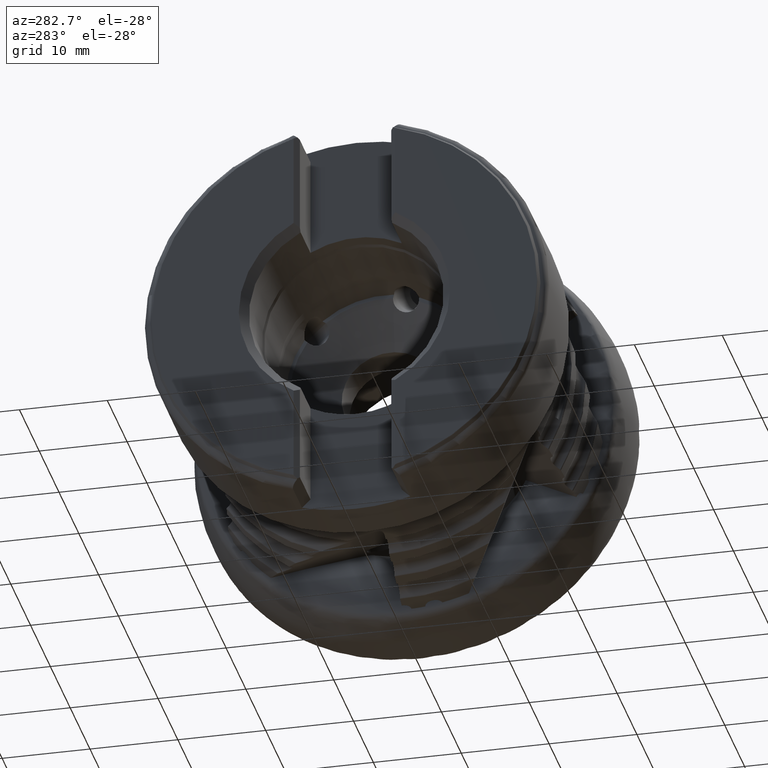
[diagram: clean part render]
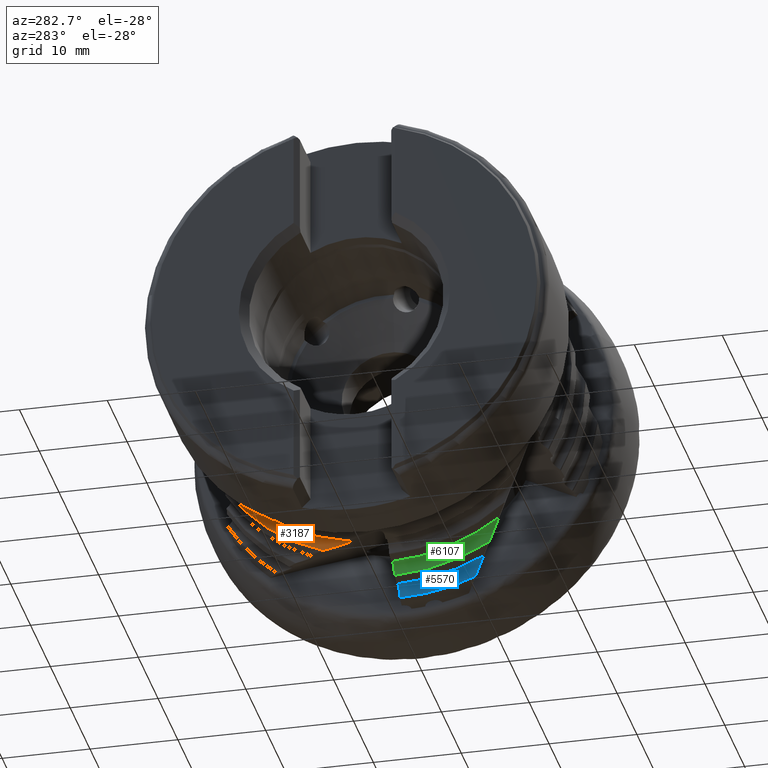
[diagram: same view with three faces highlighted in distinct colors, each labeled with its STEP entity id]
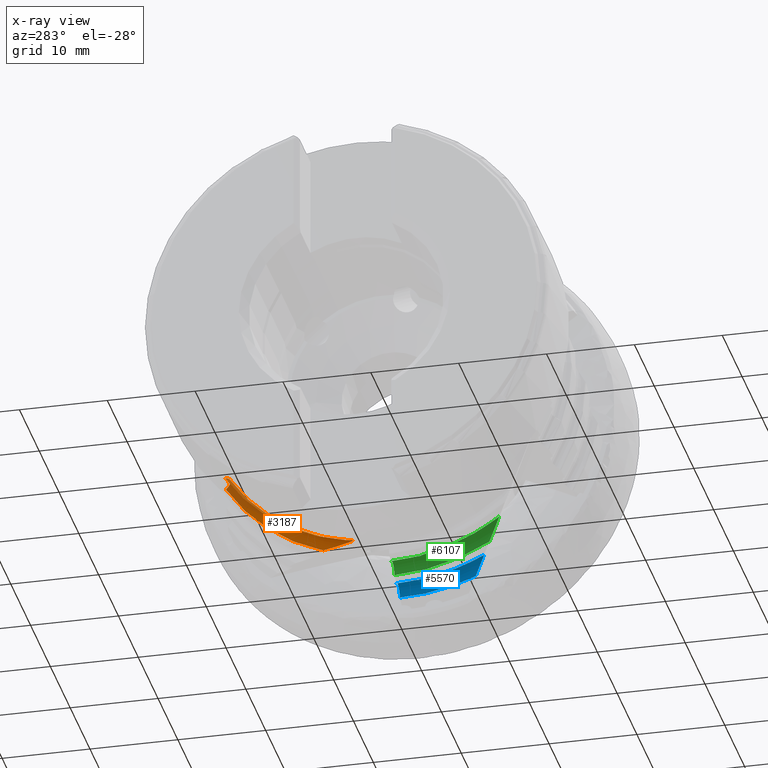
[diagram: x-ray of the same camera — body ghosted, the three highlighted faces saturated]
A machine part, auxiliary view with three faces highlighted in distinct colors.
The next image is the same camera in x-ray (body ghosted, the three faces saturated) — at least one of them is partly hidden behind the body in this view.
Their STEP definitions:

[orange] entity #3187 — the highlighted toroidal blend (fillet) surface has major radius 21.7722 mm and minor (blend) radius 1.5 mm.
#130 = VERTEX_POINT ( 'NONE', #5664 ) ;
#211 = AXIS2_PLACEMENT_3D ( 'NONE', #9910, #7178, #10834 ) ;
#339 = DIRECTION ( 'NONE',  ( 0.0000000000000000000, 0.0000000000000000000, 1.000000000000000000 ) ) ;
#620 = CIRCLE ( 'NONE', #9507, 20.73211390725824500 ) ;
#630 = EDGE_CURVE ( 'NONE', #5777, #4929, #9597, .T. ) ;
#801 = CARTESIAN_POINT ( 'NONE',  ( -21.13087859951962600, 17.60716917457905200, -10.94569050911273900 ) ) ;
#835 = CARTESIAN_POINT ( 'NONE',  ( -19.67118092968246000, 17.30003180987494100, -10.65050207042723000 ) ) ;
#874 = EDGE_LOOP ( 'NONE', ( #10173, #885, #4176, #4095 ) ) ;
#885 = ORIENTED_EDGE ( 'NONE', *, *, #7662, .T. ) ;
#920 = CARTESIAN_POINT ( 'NONE',  ( -19.55108847718164400, 4.315878190496023100, -19.89220388104703100 ) ) ;
#1657 = CARTESIAN_POINT ( 'NONE',  ( -19.12610647228360600, 5.314850136450536100, -19.88211659716479900 ) ) ;
#1675 = CARTESIAN_POINT ( 'NONE',  ( -19.87804341494742400, 3.745560951187519200, -19.93199614168690900 ) ) ;
#1772 = CARTESIAN_POINT ( 'NONE',  ( -19.33122505335194300, 17.42889960872676600, -10.69745435221362600 ) ) ;
#2307 = CARTESIAN_POINT ( 'NONE',  ( -20.66067471278993400, 3.164977379314987800, -20.15402651600015500 ) ) ;
#2424 = CARTESIAN_POINT ( 'NONE',  ( -19.81895459237345500, 3.837377880666375000, -19.92298626738819300 ) ) ;
#2530 = CARTESIAN_POINT ( 'NONE',  ( -18.75934362086436700, 6.560746173027141000, -19.93542489313994500 ) ) ;
#2679 = CARTESIAN_POINT ( 'NONE',  ( -18.93639870442812500, 17.69299969328474700, -10.81805254017792000 ) ) ;
#2702 = EDGE_CURVE ( 'NONE', #4929, #10933, #620, .T. ) ;
#2708 = CARTESIAN_POINT ( 'NONE',  ( -21.13087859951954400, 0.0000000000000000000, 0.0000000000000000000 ) ) ;
#2814 = CARTESIAN_POINT ( 'NONE',  ( -20.88994421487877800, 3.272622600080027600, -20.26394690902774400 ) ) ;
#3187 = ADVANCED_FACE ( 'NONE', ( #3189 ), #5585, .F. ) ;
#3189 = FACE_OUTER_BOUND ( 'NONE', #874, .T. ) ;
#3574 = CARTESIAN_POINT ( 'NONE',  ( -20.95051883069535100, 17.47020451606242000, -10.85205086235331400 ) ) ;
#3576 = CARTESIAN_POINT ( 'NONE',  ( -19.27745170604891100, 4.909124773779964800, -19.87763432090536100 ) ) ;
#3614 = CARTESIAN_POINT ( 'NONE',  ( -18.68023409339756900, 18.06845402688920300, -11.01413731029902900 ) ) ;
#3643 = DIRECTION ( 'NONE',  ( 0.0000000000000000000, 0.0000000000000000000, -1.000000000000000000 ) ) ;
#4095 = ORIENTED_EDGE ( 'NONE', *, *, #630, .T. ) ;
#4176 = ORIENTED_EDGE ( 'NONE', *, *, #9813, .T. ) ;
#4315 = CARTESIAN_POINT ( 'NONE',  ( -20.00584397426181100, 3.568846144334124400, -19.95501744373284900 ) ) ;
#4484 = CARTESIAN_POINT ( 'NONE',  ( -20.63091348649846800, 17.32388289931544600, -10.74176565506504000 ) ) ;
#4683 = CARTESIAN_POINT ( 'NONE',  ( -21.02732636422721800, 3.427453487112067400, -20.34440904253733600 ) ) ;
#4929 = VERTEX_POINT ( 'NONE', #5067 ) ;
#5067 = CARTESIAN_POINT ( 'NONE',  ( -21.13087859951974000, 3.609114395932507200, -20.41555388277782900 ) ) ;
#5075 = CARTESIAN_POINT ( 'NONE',  ( -20.22751814450656800, 3.329285363616983200, -20.00576807159795900 ) ) ;
#5371 = CARTESIAN_POINT ( 'NONE',  ( -20.27807802083025700, 17.25083780652537500, -10.67110351815497900 ) ) ;
#5465 = CARTESIAN_POINT ( 'NONE',  ( -18.68023409339756900, 6.990243026744159300, -19.97290049139044000 ) ) ;
#5585 = TOROIDAL_SURFACE ( 'NONE', #211, 21.77216268164352200, 1.500000000000000900 ) ;
#5664 = CARTESIAN_POINT ( 'NONE',  ( -18.68023409339756900, 18.06845402688920300, -11.01413731029902900 ) ) ;
#5777 = VERTEX_POINT ( 'NONE', #5465 ) ;
#5787 = DIRECTION ( 'NONE',  ( -1.000000000000000000, 0.0000000000000000000, 0.0000000000000000000 ) ) ;
#6030 = B_SPLINE_CURVE_WITH_KNOTS ( 'NONE', 3,
 ( #801, #6232, #3574, #9856, #4484, #10778, #5371, #11666, #6271, #835, #7170, #1772, #8085, #2679, #8990, #3614 ),
 .UNSPECIFIED., .F., .F.,
 ( 4, 2, 2, 2, 2, 2, 2, 4 ),
 ( 2.844655014368033900E-007, 0.0003657749391949905200, 0.0007312654128885442500, 0.001096755886582097900, 0.001462246360275651700, 0.001827736833969205700, 0.002193227307662759300, 0.002924208255049859900 ),
 .UNSPECIFIED. ) ;
#6232 = CARTESIAN_POINT ( 'NONE',  ( -21.04521597157619100, 17.53319403227119400, -10.89606415237896700 ) ) ;
#6262 = CIRCLE ( 'NONE', #6830, 21.16081878406240700 ) ;
#6271 = CARTESIAN_POINT ( 'NONE',  ( -19.91276013581860500, 17.25461714438499800, -10.64378809991017300 ) ) ;
#6830 = AXIS2_PLACEMENT_3D ( 'NONE', #11196, #5787, #339 ) ;
#6950 = CARTESIAN_POINT ( 'NONE',  ( -21.13087859951962600, 17.60716917457905200, -10.94569050911273900 ) ) ;
#7170 = CARTESIAN_POINT ( 'NONE',  ( -19.55356525300313900, 17.33541645108680000, -10.66143458032796900 ) ) ;
#7178 = DIRECTION ( 'NONE',  ( 1.000000000000000000, -0.0000000000000000000, -0.0000000000000000000 ) ) ;
#7662 = EDGE_CURVE ( 'NONE', #10933, #130, #6030, .T. ) ;
#8052 = CARTESIAN_POINT ( 'NONE',  ( -19.65085442394348200, 4.119419406722299100, -19.90072087028067900 ) ) ;
#8085 = CARTESIAN_POINT ( 'NONE',  ( -19.22441376694031200, 17.48818001390938500, -10.72305548326136900 ) ) ;
#8170 = CARTESIAN_POINT ( 'NONE',  ( -18.68023409339756900, 6.990243026744159300, -19.97290049139044000 ) ) ;
#8244 = CARTESIAN_POINT ( 'NONE',  ( -20.60850770007612100, 3.160960685697831200, -20.13232445414575600 ) ) ;
#8825 = CARTESIAN_POINT ( 'NONE',  ( -20.45537562409168300, 3.190213985788414400, -20.07525203292824000 ) ) ;
#8990 = CARTESIAN_POINT ( 'NONE',  ( -18.78083901876275900, 17.86952198400672000, -10.90740713894294300 ) ) ;
#9018 = DIRECTION ( 'NONE',  ( 1.000000000000000000, -0.0000000000000000000, -0.0000000000000000000 ) ) ;
#9365 = CARTESIAN_POINT ( 'NONE',  ( -20.80693782719539400, 3.207104121483389700, -20.21986103353800200 ) ) ;
#9507 = AXIS2_PLACEMENT_3D ( 'NONE', #2708, #9018, #3643 ) ;
#9597 = B_SPLINE_CURVE_WITH_KNOTS ( 'NONE', 3,
 ( #8170, #2530, #10706, #1657, #3576, #920, #8052, #2424, #1675, #4315, #10643, #5075, #10471, #8825, #10208, #8244, #2307, #9365, #2814, #4683, #11075, #9860 ),
 .UNSPECIFIED., .F., .F.,
 ( 4, 2, 2, 2, 2, 2, 2, 2, 2, 2, 4 ),
 ( 1.094619236826332100E-006, 0.001299611039574208700, 0.002598127459911591000, 0.003247385670080285700, 0.003572014775164629600, 0.003896643880248973100, 0.004221272985333316500, 0.004383587537875488500, 0.004545902090417661300, 0.004870531195502000900, 0.005195160300586341300 ),
 .UNSPECIFIED. ) ;
#9813 = EDGE_CURVE ( 'NONE', #130, #5777, #6262, .T. ) ;
#9856 = CARTESIAN_POINT ( 'NONE',  ( -20.74369515724399100, 17.36541896486118800, -10.77485301639248200 ) ) ;
#9860 = CARTESIAN_POINT ( 'NONE',  ( -21.13087859951974000, 3.609114395932507200, -20.41555388277782900 ) ) ;
#9910 = CARTESIAN_POINT ( 'NONE',  ( -20.04999999999999400, 0.0000000000000000000, 0.0000000000000000000 ) ) ;
#10173 = ORIENTED_EDGE ( 'NONE', *, *, #2702, .T. ) ;
#10208 = CARTESIAN_POINT ( 'NONE',  ( -20.50645473438306300, 3.173632265439814600, -20.09318658237502600 ) ) ;
#10471 = CARTESIAN_POINT ( 'NONE',  ( -20.31195397129124200, 3.259294650797711000, -20.02853408836439500 ) ) ;
#10643 = CARTESIAN_POINT ( 'NONE',  ( -20.07509251561712600, 3.483041601324363700, -19.96909900259254700 ) ) ;
#10706 = CARTESIAN_POINT ( 'NONE',  ( -18.86667290376015400, 6.140535940814740600, -19.91083853658289000 ) ) ;
#10778 = CARTESIAN_POINT ( 'NONE',  ( -20.39959954093519900, 17.26701653473477500, -10.69025650895141600 ) ) ;
#10834 = DIRECTION ( 'NONE',  ( 0.0000000000000000000, 0.0000000000000000000, -1.000000000000000000 ) ) ;
#10933 = VERTEX_POINT ( 'NONE', #6950 ) ;
#11075 = CARTESIAN_POINT ( 'NONE',  ( -21.08237735780032200, 3.515686684185881800, -20.38088341527206600 ) ) ;
#11196 = CARTESIAN_POINT ( 'NONE',  ( -18.68023409339748800, 0.0000000000000000000, 0.0000000000000000000 ) ) ;
#11666 = CARTESIAN_POINT ( 'NONE',  ( -20.03414151095266900, 17.24482103927472200, -10.64793319775790800 ) ) ;

[blue] entity #5570 — the highlighted toroidal blend (fillet) surface has major radius 23.1716 mm and minor (blend) radius 1.5 mm.
#136 = CARTESIAN_POINT ( 'NONE',  ( -12.27897101353966000, -0.05667577845834141600, -21.68412127577693800 ) ) ;
#406 = CARTESIAN_POINT ( 'NONE',  ( -11.38196812819117000, -9.278860979531943400, -19.75389716423850200 ) ) ;
#882 = TOROIDAL_SURFACE ( 'NONE', #6054, 23.17164718699160300, 1.499999999999999100 ) ;
#1058 = CARTESIAN_POINT ( 'NONE',  ( -11.91373113437612700, -0.03113571811380781000, -21.67280776132501100 ) ) ;
#1331 = CARTESIAN_POINT ( 'NONE',  ( -11.70108405026069300, -9.504956540936573700, -19.51703035846167500 ) ) ;
#1473 = EDGE_CURVE ( 'NONE', #10336, #9876, #9699, .T. ) ;
#1806 = ORIENTED_EDGE ( 'NONE', *, *, #1473, .T. ) ;
#1838 = DIRECTION ( 'NONE',  ( 1.000000000000000000, -0.0000000000000000000, -0.0000000000000000000 ) ) ;
#1993 = CARTESIAN_POINT ( 'NONE',  ( -11.55442341486238600, -0.006010474781523257600, -21.75066231363696900 ) ) ;
#2228 = CARTESIAN_POINT ( 'NONE',  ( -10.68023409339757300, -8.552979881606145100, -20.87615433107897200 ) ) ;
#2266 = CARTESIAN_POINT ( 'NONE',  ( -12.07453209927533100, -9.722890255631945400, -19.36252361833024300 ) ) ;
#2714 = EDGE_CURVE ( 'NONE', #11705, #10336, #3051, .T. ) ;
#2877 = CARTESIAN_POINT ( 'NONE',  ( -13.13087859951962200, -0.1162469600163971200, -22.13129311498002100 ) ) ;
#2913 = CARTESIAN_POINT ( 'NONE',  ( -11.22502206489686000, 0.01702351147145130300, -21.91297354548968800 ) ) ;
#3051 = CIRCLE ( 'NONE', #10749, 22.13159841260620200 ) ;
#3062 = B_SPLINE_CURVE_WITH_KNOTS ( 'NONE', 3,
 ( #2228, #7630, #4964, #11267, #5861, #406, #6750, #1331, #7668, #2266, #8577, #3183, #9469, #4111, #10387, #4999 ),
 .UNSPECIFIED., .F., .F.,
 ( 4, 2, 2, 2, 2, 2, 2, 4 ),
 ( 7.110865406969050800E-007, 0.0009083661868819223400, 0.001362193737052535100, 0.001816021287223147700, 0.002269848837393760300, 0.002723676387564373400, 0.003177503937734985900, 0.003631331487905598500 ),
 .UNSPECIFIED. ) ;
#3183 = CARTESIAN_POINT ( 'NONE',  ( -12.49427168227202700, -9.910122769067720900, -19.34063456121869600 ) ) ;
#3841 = CARTESIAN_POINT ( 'NONE',  ( -10.78091148053873200, 0.04807874878598141600, -22.33467657952932600 ) ) ;
#4111 = CARTESIAN_POINT ( 'NONE',  ( -12.91047436386583600, -10.02350658486270900, -19.50897485242375500 ) ) ;
#4395 = DIRECTION ( 'NONE',  ( 0.0000000000000000000, 0.0000000000000000000, -1.000000000000000000 ) ) ;
#4475 = CARTESIAN_POINT ( 'NONE',  ( -10.68023409339768600, 0.0000000000000000000, 0.0000000000000000000 ) ) ;
#4540 = EDGE_CURVE ( 'NONE', #9876, #8556, #10517, .T. ) ;
#4708 = CARTESIAN_POINT ( 'NONE',  ( -12.74412441196188600, -0.08920247267469018400, -21.83615241279421300 ) ) ;
#4964 = CARTESIAN_POINT ( 'NONE',  ( -10.88453261344474900, -8.830653368128002600, -20.37496565031434400 ) ) ;
#4999 = CARTESIAN_POINT ( 'NONE',  ( -13.13087859951970400, -10.03500401606533600, -19.72577863341350500 ) ) ;
#5358 = DIRECTION ( 'NONE',  ( 0.0000000000000000000, 0.0000000000000000000, 1.000000000000000000 ) ) ;
#5570 = ADVANCED_FACE ( 'NONE', ( #7821 ), #882, .F. ) ;
#5588 = CARTESIAN_POINT ( 'NONE',  ( -12.40035925841293000, -0.06516407142974571500, -21.70798468509016400 ) ) ;
#5861 = CARTESIAN_POINT ( 'NONE',  ( -11.19714332633865400, -9.127896738285509000, -19.94371620795340400 ) ) ;
#6054 = AXIS2_PLACEMENT_3D ( 'NONE', #7912, #11456, #4395 ) ;
#6489 = CARTESIAN_POINT ( 'NONE',  ( -12.03508918190942900, -0.03962189948149876700, -21.66671284914487200 ) ) ;
#6750 = CARTESIAN_POINT ( 'NONE',  ( -11.48193799467340200, -9.354279794436259000, -19.66762481198004400 ) ) ;
#6914 = ORIENTED_EDGE ( 'NONE', *, *, #2714, .T. ) ;
#7217 = CARTESIAN_POINT ( 'NONE',  ( -10.68023409339757300, -8.552979881606145100, -20.87615433107897200 ) ) ;
#7234 = CARTESIAN_POINT ( 'NONE',  ( -13.13087859951966500, 0.0000000000000000000, 0.0000000000000000000 ) ) ;
#7392 = CARTESIAN_POINT ( 'NONE',  ( -11.67219028169397200, -0.01424553633163075000, -21.71483719109594200 ) ) ;
#7416 = AXIS2_PLACEMENT_3D ( 'NONE', #4475, #10771, #5358 ) ;
#7630 = CARTESIAN_POINT ( 'NONE',  ( -10.76535756811680100, -8.688805988980435700, -20.61439364483135300 ) ) ;
#7668 = CARTESIAN_POINT ( 'NONE',  ( -11.82029824623808500, -9.580125563973286500, -19.45298465205809500 ) ) ;
#7821 = FACE_OUTER_BOUND ( 'NONE', #9026, .T. ) ;
#7912 = CARTESIAN_POINT ( 'NONE',  ( -12.04999999999999700, 0.0000000000000000000, 0.0000000000000000000 ) ) ;
#7933 = EDGE_CURVE ( 'NONE', #8556, #11705, #3062, .T. ) ;
#8152 = DIRECTION ( 'NONE',  ( 0.0000000000000000000, 0.0000000000000000000, -1.000000000000000000 ) ) ;
#8307 = CARTESIAN_POINT ( 'NONE',  ( -11.33194343712296100, 0.009546840783055583100, -21.84907681778509700 ) ) ;
#8498 = CARTESIAN_POINT ( 'NONE',  ( -10.68023409339756700, 0.05511879750356601900, -22.56023595684116500 ) ) ;
#8556 = VERTEX_POINT ( 'NONE', #7217 ) ;
#8577 = CARTESIAN_POINT ( 'NONE',  ( -12.21216721856603700, -9.791811071305835100, -19.33555517572599700 ) ) ;
#9026 = EDGE_LOOP ( 'NONE', ( #11621, #9237, #6914, #1806 ) ) ;
#9207 = CARTESIAN_POINT ( 'NONE',  ( -10.93664322972924600, 0.03718892404670321600, -22.13732212025805200 ) ) ;
#9237 = ORIENTED_EDGE ( 'NONE', *, *, #7933, .T. ) ;
#9469 = CARTESIAN_POINT ( 'NONE',  ( -12.64007575251641100, -9.959631256846892100, -19.37386914399791100 ) ) ;
#9699 = B_SPLINE_CURVE_WITH_KNOTS ( 'NONE', 3,
 ( #2877, #10962, #10090, #4708, #10993, #5588, #136, #6489, #1058, #7392, #1993, #8307, #2913, #9207, #3841, #10126 ),
 .UNSPECIFIED., .F., .F.,
 ( 4, 2, 2, 2, 2, 2, 2, 4 ),
 ( 2.846617964408649400E-007, 0.0003656792147573333800, 0.0007310737677182259600, 0.001096468320679118400, 0.001461862873640011000, 0.001827257426600903600, 0.002192651979561795700, 0.002923441085483580900 ),
 .UNSPECIFIED. ) ;
#9789 = CARTESIAN_POINT ( 'NONE',  ( -13.13087859951962200, -0.1162469600163971200, -22.13129311498002100 ) ) ;
#9876 = VERTEX_POINT ( 'NONE', #8498 ) ;
#10090 = CARTESIAN_POINT ( 'NONE',  ( -12.95070190089095300, -0.1036477778947915400, -21.96574732776034700 ) ) ;
#10126 = CARTESIAN_POINT ( 'NONE',  ( -10.68023409339756700, 0.05511879750356601900, -22.56023595684116500 ) ) ;
#10336 = VERTEX_POINT ( 'NONE', #9789 ) ;
#10387 = CARTESIAN_POINT ( 'NONE',  ( -13.03062081203037600, -10.03713927854350800, -19.60779090613370500 ) ) ;
#10517 = CIRCLE ( 'NONE', #7416, 22.56030328941057300 ) ;
#10749 = AXIS2_PLACEMENT_3D ( 'NONE', #7234, #1838, #8152 ) ;
#10771 = DIRECTION ( 'NONE',  ( -1.000000000000000000, 0.0000000000000000000, 0.0000000000000000000 ) ) ;
#10962 = CARTESIAN_POINT ( 'NONE',  ( -13.04529751237973800, -0.1102625474300473800, -22.04238252606624800 ) ) ;
#10993 = CARTESIAN_POINT ( 'NONE',  ( -12.63145937833462200, -0.08132416605562864400, -21.78344695007719500 ) ) ;
#11267 = CARTESIAN_POINT ( 'NONE',  ( -11.11215893838969000, -9.052064918190401600, -20.04787090926250000 ) ) ;
#11456 = DIRECTION ( 'NONE',  ( 1.000000000000000000, -0.0000000000000000000, -0.0000000000000000000 ) ) ;
#11584 = CARTESIAN_POINT ( 'NONE',  ( -13.13087859951970400, -10.03500401606533600, -19.72577863341350500 ) ) ;
#11621 = ORIENTED_EDGE ( 'NONE', *, *, #4540, .T. ) ;
#11705 = VERTEX_POINT ( 'NONE', #11584 ) ;

[green] entity #6107 — the highlighted toroidal blend (fillet) surface has major radius 22.4719 mm and minor (blend) radius 1.5 mm.
#127 = CARTESIAN_POINT ( 'NONE',  ( -15.63310859506106000, -12.04988271593889600, -17.23201958187558000 ) ) ;
#166 = CARTESIAN_POINT ( 'NONE',  ( -17.08004094833999500, -12.67154000820413100, -17.21907802008063000 ) ) ;
#193 = CARTESIAN_POINT ( 'NONE',  ( -16.63119203305420500, -0.3610127192264726000, -21.08064956271123300 ) ) ;
#771 = DIRECTION ( 'NONE',  ( 0.0000000000000000000, 0.0000000000000000000, 1.000000000000000000 ) ) ;
#819 = DIRECTION ( 'NONE',  ( 1.000000000000000000, -0.0000000000000000000, -0.0000000000000000000 ) ) ;
#978 = EDGE_CURVE ( 'NONE', #10224, #3349, #5532, .T. ) ;
#1052 = CARTESIAN_POINT ( 'NONE',  ( -15.93271513776270400, -12.25794318260824800, -17.02071126448535300 ) ) ;
#1110 = CARTESIAN_POINT ( 'NONE',  ( -16.27854218285962800, -0.3363530394700151600, -20.98169066013831600 ) ) ;
#1307 = AXIS2_PLACEMENT_3D ( 'NONE', #6246, #819, #7148 ) ;
#1536 = ORIENTED_EDGE ( 'NONE', *, *, #978, .T. ) ;
#1986 = CARTESIAN_POINT ( 'NONE',  ( -16.13565881586840000, -12.37900103694546600, -16.92984284274750800 ) ) ;
#2048 = CARTESIAN_POINT ( 'NONE',  ( -15.91327285587009600, -0.3108109199328905100, -20.97082558593703200 ) ) ;
#2235 = ORIENTED_EDGE ( 'NONE', *, *, #8077, .T. ) ;
#2237 = AXIS2_PLACEMENT_3D ( 'NONE', #4207, #7768, #10493 ) ;
#2377 = ORIENTED_EDGE ( 'NONE', *, *, #7293, .T. ) ;
#2870 = CARTESIAN_POINT ( 'NONE',  ( -14.76092484448979100, -11.16281961932865000, -18.58707671373609900 ) ) ;
#2906 = CARTESIAN_POINT ( 'NONE',  ( -16.35984633485158200, -12.49234590549242100, -16.88306752343420700 ) ) ;
#2930 = CARTESIAN_POINT ( 'NONE',  ( -17.04525603627636000, -0.3899668949123577500, -21.33930975901270000 ) ) ;
#2964 = CARTESIAN_POINT ( 'NONE',  ( -15.55402588091737600, -0.2856899242741009500, -21.04912324883306600 ) ) ;
#3349 = VERTEX_POINT ( 'NONE', #5469 ) ;
#3767 = CIRCLE ( 'NONE', #8605, 21.86056103673645300 ) ;
#3787 = CARTESIAN_POINT ( 'NONE',  ( -14.68023409339756200, -11.01632395127575300, -18.88186260519416500 ) ) ;
#3801 = CARTESIAN_POINT ( 'NONE',  ( -14.68023409339756200, -11.01632395127575300, -18.88186260519416500 ) ) ;
#3833 = CARTESIAN_POINT ( 'NONE',  ( -16.59616847400311800, -12.58640858183803600, -16.90059789828990600 ) ) ;
#3838 = VERTEX_POINT ( 'NONE', #3787 ) ;
#3892 = CARTESIAN_POINT ( 'NONE',  ( -15.22474605311009200, -0.2626644356782328900, -21.21179821980087300 ) ) ;
#4207 = CARTESIAN_POINT ( 'NONE',  ( -16.04999999999999400, 0.0000000000000000000, 0.0000000000000000000 ) ) ;
#4703 = CARTESIAN_POINT ( 'NONE',  ( -14.87228296032762600, -11.31552784356292400, -18.31032736072920000 ) ) ;
#4734 = CARTESIAN_POINT ( 'NONE',  ( -16.82563008978984700, -12.64826095247996600, -16.99513943658725900 ) ) ;
#4792 = CARTESIAN_POINT ( 'NONE',  ( -14.78088030975198700, -0.2316263193142671100, -21.63381705713615200 ) ) ;
#4859 = ORIENTED_EDGE ( 'NONE', *, *, #8492, .T. ) ;
#5469 = CARTESIAN_POINT ( 'NONE',  ( -17.13087859951962600, -0.3959542077903892000, -21.42819821462730800 ) ) ;
#5532 = CIRCLE ( 'NONE', #1307, 21.43185615993230500 ) ;
#5578 = CARTESIAN_POINT ( 'NONE',  ( -15.32275175622067700, -11.79859712816151100, -17.54494397881566300 ) ) ;
#5616 = CARTESIAN_POINT ( 'NONE',  ( -17.02367974232289800, -12.67163160770330800, -17.15566532732564300 ) ) ;
#5642 = CARTESIAN_POINT ( 'NONE',  ( -16.74391286478121500, -0.3688949276287614200, -21.13325716943920800 ) ) ;
#6107 = ADVANCED_FACE ( 'NONE', ( #7965 ), #10077, .F. ) ;
#6201 = DIRECTION ( 'NONE',  ( -1.000000000000000000, 0.0000000000000000000, 0.0000000000000000000 ) ) ;
#6246 = CARTESIAN_POINT ( 'NONE',  ( -17.13087859951951900, 0.0000000000000000000, 0.0000000000000000000 ) ) ;
#6391 = B_SPLINE_CURVE_WITH_KNOTS ( 'NONE', 3,
 ( #3801, #2870, #4703, #10987, #5578, #127, #6482, #1052, #7381, #1986, #8300, #2906, #9198, #3833, #10118, #4734, #11020, #5616, #166, #6513 ),
 .UNSPECIFIED., .F., .F.,
 ( 4, 2, 2, 2, 2, 2, 2, 2, 2, 4 ),
 ( 8.298003902462426600E-007, 0.001004859700237275400, 0.002008889600084304500, 0.002510904550007818800, 0.002761912024969573800, 0.003012919499931327900, 0.003263926974893082400, 0.003514934449854836900, 0.003765941924816591900, 0.004016949399778346400 ),
 .UNSPECIFIED. ) ;
#6415 = CARTESIAN_POINT ( 'NONE',  ( -14.68023409339756600, -0.2245884502704254500, -21.85940733114433200 ) ) ;
#6482 = CARTESIAN_POINT ( 'NONE',  ( -15.74653139752890300, -12.13447183582986900, -17.13671142930165900 ) ) ;
#6513 = CARTESIAN_POINT ( 'NONE',  ( -17.13087859951985300, -12.66705002843404100, -17.28786574557966200 ) ) ;
#6542 = CARTESIAN_POINT ( 'NONE',  ( -16.39999175256665300, -0.3448456206915365700, -21.00541806189864100 ) ) ;
#7148 = DIRECTION ( 'NONE',  ( 0.0000000000000000000, 0.0000000000000000000, -1.000000000000000000 ) ) ;
#7293 = EDGE_CURVE ( 'NONE', #3349, #8047, #7752, .T. ) ;
#7344 = CARTESIAN_POINT ( 'NONE',  ( -17.13087859951985300, -12.66705002843404100, -17.28786574557966200 ) ) ;
#7381 = CARTESIAN_POINT ( 'NONE',  ( -15.99767197258419100, -12.29868332291213100, -16.98638651456058600 ) ) ;
#7446 = CARTESIAN_POINT ( 'NONE',  ( -16.03463918549052600, -0.3192976804405309200, -20.96457934127399600 ) ) ;
#7752 = B_SPLINE_CURVE_WITH_KNOTS ( 'NONE', 3,
 ( #9222, #2930, #11044, #5642, #193, #6542, #1110, #7446, #2048, #8363, #2964, #9258, #3892, #10180, #4792, #11085 ),
 .UNSPECIFIED., .F., .F.,
 ( 4, 2, 2, 2, 2, 2, 2, 4 ),
 ( 2.845527977338687900E-007, 0.0003657162040174822000, 0.0007311478552372304500, 0.001096579506456978900, 0.001462011157676727200, 0.001827442808896475300, 0.002192874460116223800, 0.002923737762555713900 ),
 .UNSPECIFIED. ) ;
#7768 = DIRECTION ( 'NONE',  ( 1.000000000000000000, -0.0000000000000000000, -0.0000000000000000000 ) ) ;
#7965 = FACE_OUTER_BOUND ( 'NONE', #11011, .T. ) ;
#8047 = VERTEX_POINT ( 'NONE', #6415 ) ;
#8077 = EDGE_CURVE ( 'NONE', #3838, #10224, #6391, .T. ) ;
#8300 = CARTESIAN_POINT ( 'NONE',  ( -16.20895912203321000, -12.41865010264719300, -16.90773888462254200 ) ) ;
#8363 = CARTESIAN_POINT ( 'NONE',  ( -15.67172015490645300, -0.2939199096381618400, -21.01316522598727200 ) ) ;
#8492 = EDGE_CURVE ( 'NONE', #8047, #3838, #3767, .T. ) ;
#8605 = AXIS2_PLACEMENT_3D ( 'NONE', #11598, #6201, #771 ) ;
#9198 = CARTESIAN_POINT ( 'NONE',  ( -16.43932718039450700, -12.52721372379113500, -16.88046379305267000 ) ) ;
#9222 = CARTESIAN_POINT ( 'NONE',  ( -17.13087859951962600, -0.3959542077903892000, -21.42819821462730800 ) ) ;
#9258 = CARTESIAN_POINT ( 'NONE',  ( -15.33161541671601400, -0.2701374695696258700, -21.14779200621400800 ) ) ;
#10077 = TOROIDAL_SURFACE ( 'NONE', #2237, 22.47190493431756100, 1.500000000000000900 ) ;
#10118 = CARTESIAN_POINT ( 'NONE',  ( -16.67579200072111000, -12.61152699956715400, -16.92379126063861600 ) ) ;
#10180 = CARTESIAN_POINT ( 'NONE',  ( -14.93653651701010100, -0.2425108616470445800, -21.43638109013309300 ) ) ;
#10224 = VERTEX_POINT ( 'NONE', #7344 ) ;
#10493 = DIRECTION ( 'NONE',  ( 0.0000000000000000000, 0.0000000000000000000, -1.000000000000000000 ) ) ;
#10987 = CARTESIAN_POINT ( 'NONE',  ( -15.15254904729641400, -11.63260266933923300, -17.79067571612621300 ) ) ;
#11011 = EDGE_LOOP ( 'NONE', ( #4859, #2235, #1536, #2377 ) ) ;
#11020 = CARTESIAN_POINT ( 'NONE',  ( -16.89621716651642600, -12.66007728486357400, -17.04318375938661500 ) ) ;
#11044 = CARTESIAN_POINT ( 'NONE',  ( -16.95060987540357500, -0.3833485906198330600, -21.26271898498769600 ) ) ;
#11085 = CARTESIAN_POINT ( 'NONE',  ( -14.68023409339756600, -0.2245884502704254500, -21.85940733114433200 ) ) ;
#11598 = CARTESIAN_POINT ( 'NONE',  ( -14.68023409339748400, 0.0000000000000000000, 0.0000000000000000000 ) ) ;